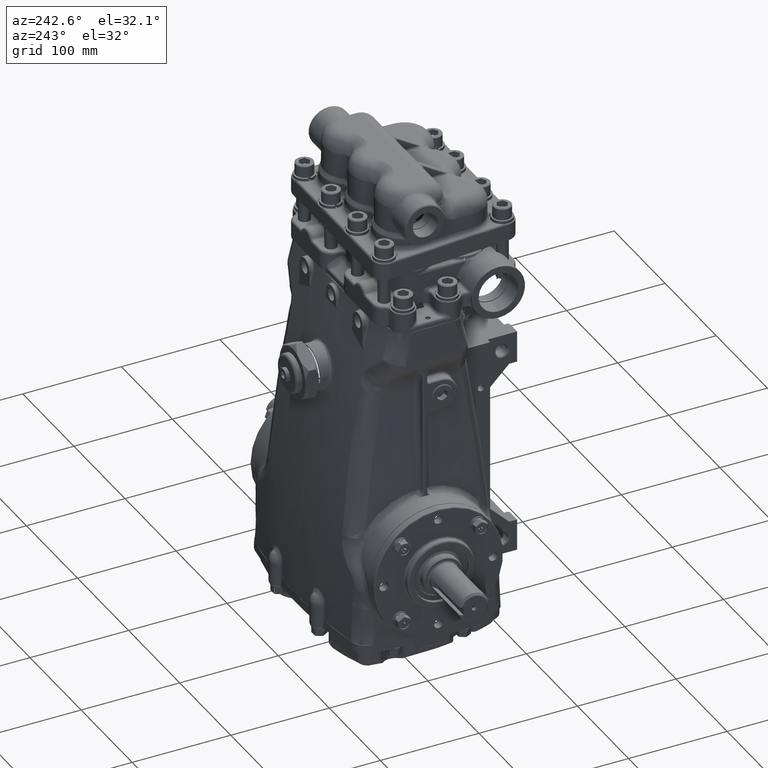
[diagram: clean part render]
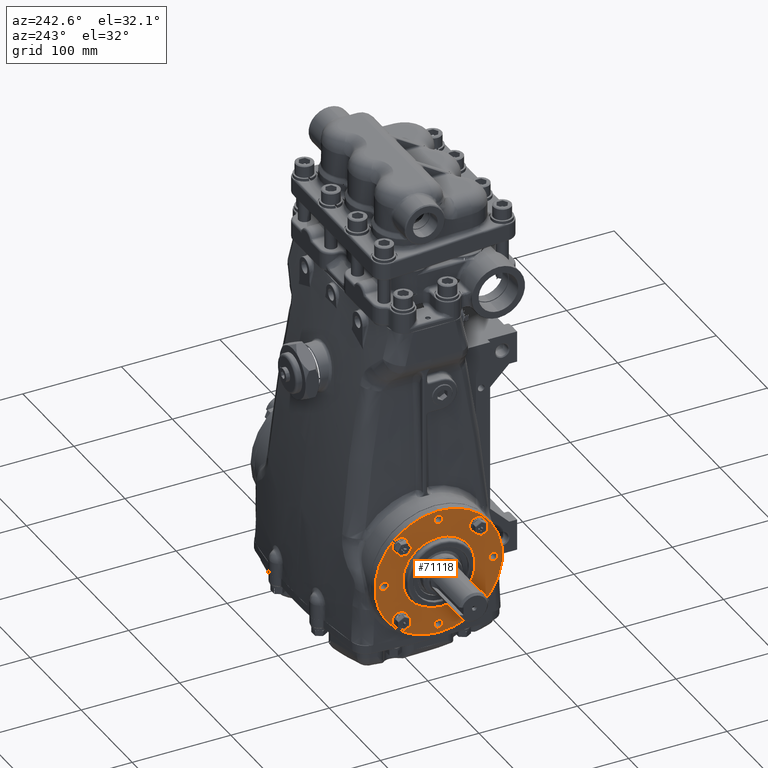
[diagram: same view with one face highlighted and labeled with its STEP entity id]
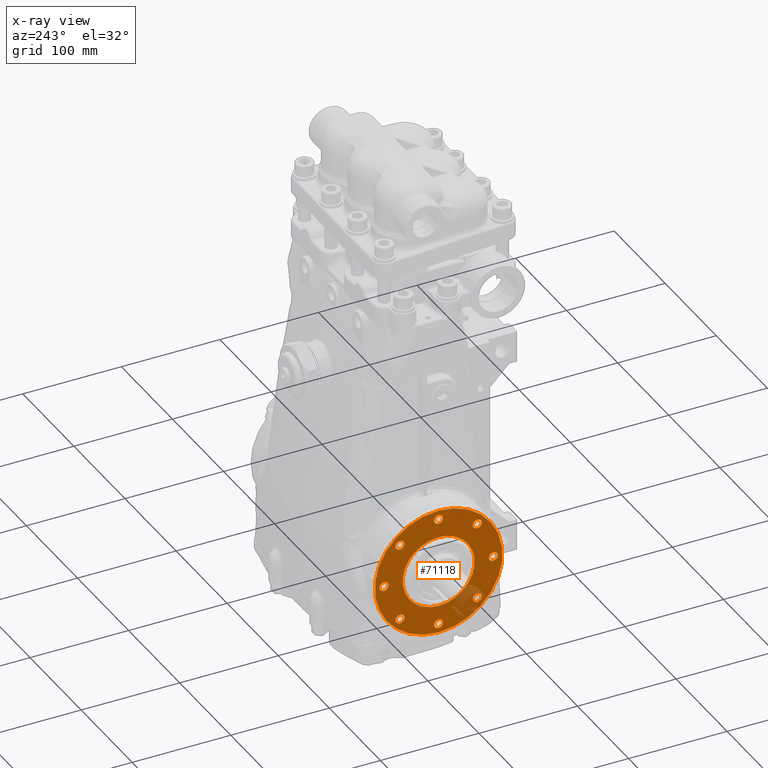
[diagram: x-ray of the same camera — body ghosted, the highlighted face saturated]
A machine part, auxiliary view. The second image highlights one B-rep face of the part: STEP entity #71118.
The next image is the same camera in x-ray: the body ghosted, the highlighted face saturated — about 9% of this face is hidden behind the body in this view.
In plain terms, the highlighted planar face has unit normal (-1, 0, -0).
Its self-contained STEP definition (entity closure, byte-faithful):
#747 = PLANE ( 'NONE',  #59064 ) ;
#983 = AXIS2_PLACEMENT_3D ( 'NONE', #21045, #37341, #78948 ) ;
#1345 = CARTESIAN_POINT ( 'NONE',  ( -4.763779527559056426, 5.217378254830398166E-16, -1.437007874015748810 ) ) ;
#1906 = CARTESIAN_POINT ( 'NONE',  ( -4.763779527559056426, 7.210691426501829022E-16, -2.549407286191299082 ) ) ;
#2695 = VERTEX_POINT ( 'NONE', #25826 ) ;
#2797 = ORIENTED_EDGE ( 'NONE', *, *, #4670, .F. ) ;
#2891 = DIRECTION ( 'NONE',  ( -1.000000000000000000, 1.131811308623775802E-16, -4.676151018663464800E-17 ) ) ;
#2995 = CARTESIAN_POINT ( 'NONE',  ( -4.763779527559056426, 7.639490398145056880E-17, 2.185039370078739829 ) ) ;
#3932 = DIRECTION ( 'NONE',  ( 0.000000000000000000, -5.551115123125782702E-17, 1.000000000000000000 ) ) ;
#4638 = ORIENTED_EDGE ( 'NONE', *, *, #20934, .F. ) ;
#4670 = EDGE_CURVE ( 'NONE', #2695, #77336, #20658, .T. ) ;
#4766 = VERTEX_POINT ( 'NONE', #14213 ) ;
#5802 = CARTESIAN_POINT ( 'NONE',  ( -4.763779527559056426, -2.185039370078739829, -6.072497878349156261E-16 ) ) ;
#6683 = DIRECTION ( 'NONE',  ( 0.000000000000000000, 0.000000000000000000, 1.000000000000000000 ) ) ;
#6750 = EDGE_CURVE ( 'NONE', #48793, #105255, #93479, .T. ) ;
#6973 = ORIENTED_EDGE ( 'NONE', *, *, #80955, .F. ) ;
#7025 = FACE_BOUND ( 'NONE', #51683, .T. ) ;
#7891 = AXIS2_PLACEMENT_3D ( 'NONE', #108284, #40771, #107728 ) ;
#7973 = EDGE_CURVE ( 'NONE', #77336, #2695, #21673, .T. ) ;
#7996 = ORIENTED_EDGE ( 'NONE', *, *, #75085, .F. ) ;
#8760 = CARTESIAN_POINT ( 'NONE',  ( -4.763779527559056426, -2.185039370078739829, -0.1771653543307092071 ) ) ;
#9388 = VERTEX_POINT ( 'NONE', #71325 ) ;
#10174 = EDGE_CURVE ( 'NONE', #83319, #9388, #31088, .T. ) ;
#10343 = DIRECTION ( 'NONE',  ( 0.000000000000000000, 0.000000000000000000, 1.000000000000000000 ) ) ;
#10538 = DIRECTION ( 'NONE',  ( -1.000000000000000000, 1.131811308623775802E-16, -4.676151018663464800E-17 ) ) ;
#10925 = AXIS2_PLACEMENT_3D ( 'NONE', #106325, #12407, #3932 ) ;
#11719 = ORIENTED_EDGE ( 'NONE', *, *, #7973, .F. ) ;
#11953 = DIRECTION ( 'NONE',  ( -1.000000000000000000, 1.131811308623775802E-16, -4.676151018663464800E-17 ) ) ;
#12407 = DIRECTION ( 'NONE',  ( -1.000000000000000000, 1.131811308623775802E-16, -4.676151018663464800E-17 ) ) ;
#12435 = AXIS2_PLACEMENT_3D ( 'NONE', #37296, #53075, #10343 ) ;
#12695 = CARTESIAN_POINT ( 'NONE',  ( -4.763779527559056426, -1.545056155742256410, 1.367890801411552726 ) ) ;
#14184 = DIRECTION ( 'NONE',  ( 0.000000000000000000, -5.551115123125782702E-17, 1.000000000000000000 ) ) ;
#14213 = CARTESIAN_POINT ( 'NONE',  ( -4.763779527559056426, -1.545056155742256410, -1.722221510072970974 ) ) ;
#16247 = DIRECTION ( 'NONE',  ( 0.000000000000000000, 0.000000000000000000, 1.000000000000000000 ) ) ;
#17220 = ORIENTED_EDGE ( 'NONE', *, *, #6750, .F. ) ;
#18957 = DIRECTION ( 'NONE',  ( 0.000000000000000000, 0.000000000000000000, 1.000000000000000000 ) ) ;
#19933 = AXIS2_PLACEMENT_3D ( 'NONE', #88950, #11953, #104168 ) ;
#20658 = CIRCLE ( 'NONE', #99693, 0.1771653543307085410 ) ;
#20934 = EDGE_CURVE ( 'NONE', #4766, #54082, #85654, .T. ) ;
#21045 = CARTESIAN_POINT ( 'NONE',  ( -4.763779527559056426, 2.185039370078740717, -3.646616859975289971E-16 ) ) ;
#21233 = CARTESIAN_POINT ( 'NONE',  ( -4.763779527559056426, 1.862151933267539862E-16, 1.437007874015747699 ) ) ;
#21673 = CIRCLE ( 'NONE', #10925, 0.1771653543307085410 ) ;
#22905 = AXIS2_PLACEMENT_3D ( 'NONE', #42084, #109603, #6683 ) ;
#25826 = CARTESIAN_POINT ( 'NONE',  ( -4.763779527559056426, 6.840575662283449653E-17, 2.007874015748031038 ) ) ;
#26303 = CARTESIAN_POINT ( 'NONE',  ( -4.763779527559056426, 1.545056155742256188, 1.545056155742262183 ) ) ;
#26684 = FACE_BOUND ( 'NONE', #80306, .T. ) ;
#28334 = CARTESIAN_POINT ( 'NONE',  ( -4.763779527559056426, 2.659851547417505008E-16, -4.932763697087029181E-16 ) ) ;
#29802 = CIRCLE ( 'NONE', #92615, 1.437007874015748365 ) ;
#29992 = DIRECTION ( 'NONE',  ( 0.000000000000000000, -5.551115123125783935E-17, 1.000000000000000000 ) ) ;
#31088 = CIRCLE ( 'NONE', #45484, 2.549407286191298638 ) ;
#32170 = VERTEX_POINT ( 'NONE', #97178 ) ;
#32706 = EDGE_LOOP ( 'NONE', ( #43510, #65337 ) ) ;
#33922 = ORIENTED_EDGE ( 'NONE', *, *, #64519, .T. ) ;
#33932 = AXIS2_PLACEMENT_3D ( 'NONE', #65710, #40957, #65157 ) ;
#33969 = FACE_BOUND ( 'NONE', #41016, .T. ) ;
#34586 = CIRCLE ( 'NONE', #63381, 0.1771653543307085410 ) ;
#35066 = CARTESIAN_POINT ( 'NONE',  ( -4.763779527559056426, 3.413841593668841774E-16, -1.358267716535433767 ) ) ;
#35468 = CIRCLE ( 'NONE', #22905, 0.1771653543307085965 ) ;
#37296 = CARTESIAN_POINT ( 'NONE',  ( -4.763779527559056426, -1.545056155742256410, -1.545056155742262405 ) ) ;
#37315 = DIRECTION ( 'NONE',  ( -1.000000000000000000, 1.131811308623775802E-16, -4.676151018663464800E-17 ) ) ;
#37341 = DIRECTION ( 'NONE',  ( -1.000000000000000000, 1.131811308623775802E-16, -4.676151018663464800E-17 ) ) ;
#38395 = DIRECTION ( 'NONE',  ( 1.000000000000000000, -1.131811308623775802E-16, 4.676151018663464800E-17 ) ) ;
#39225 = EDGE_CURVE ( 'NONE', #54374, #81275, #71925, .T. ) ;
#39640 = CIRCLE ( 'NONE', #64853, 2.549407286191298638 ) ;
#39745 = DIRECTION ( 'NONE',  ( 0.000000000000000000, -5.551115123125782702E-17, 1.000000000000000000 ) ) ;
#40128 = CIRCLE ( 'NONE', #103010, 0.1771653543307085410 ) ;
#40369 = DIRECTION ( 'NONE',  ( 0.000000000000000000, -5.551115123125783935E-17, 1.000000000000000000 ) ) ;
#40771 = DIRECTION ( 'NONE',  ( -1.000000000000000000, 1.131811308623775802E-16, -4.676151018663464800E-17 ) ) ;
#40957 = DIRECTION ( 'NONE',  ( -1.000000000000000000, 1.131811308623775802E-16, -4.676151018663464800E-17 ) ) ;
#41016 = EDGE_LOOP ( 'NONE', ( #65192, #17220 ) ) ;
#41161 = ORIENTED_EDGE ( 'NONE', *, *, #54988, .F. ) ;
#42084 = CARTESIAN_POINT ( 'NONE',  ( -4.763779527559056426, 2.185039370078740717, -3.646616859975289971E-16 ) ) ;
#42428 = FACE_BOUND ( 'NONE', #51854, .T. ) ;
#42822 = VERTEX_POINT ( 'NONE', #103253 ) ;
#43078 = VERTEX_POINT ( 'NONE', #58156 ) ;
#43510 = ORIENTED_EDGE ( 'NONE', *, *, #87535, .T. ) ;
#43543 = FACE_BOUND ( 'NONE', #63213, .T. ) ;
#43828 = CIRCLE ( 'NONE', #49233, 0.1771653543307085410 ) ;
#44367 = ORIENTED_EDGE ( 'NONE', *, *, #62545, .F. ) ;
#44817 = EDGE_CURVE ( 'NONE', #49315, #42822, #106749, .T. ) ;
#45484 = AXIS2_PLACEMENT_3D ( 'NONE', #28334, #55307, #29992 ) ;
#46758 = ORIENTED_EDGE ( 'NONE', *, *, #39225, .T. ) ;
#46912 = VERTEX_POINT ( 'NONE', #104894 ) ;
#47433 = AXIS2_PLACEMENT_3D ( 'NONE', #108051, #57413, #100156 ) ;
#47909 = EDGE_CURVE ( 'NONE', #46912, #72464, #78353, .T. ) ;
#48014 = DIRECTION ( 'NONE',  ( -1.000000000000000000, 1.131811308623775802E-16, -4.676151018663464800E-17 ) ) ;
#48407 = EDGE_LOOP ( 'NONE', ( #41161, #4638 ) ) ;
#48440 = CARTESIAN_POINT ( 'NONE',  ( -4.763779527559056426, 1.545056155742257742, -1.722221510072970085 ) ) ;
#48793 = VERTEX_POINT ( 'NONE', #51983 ) ;
#48992 = DIRECTION ( 'NONE',  ( 0.000000000000000000, 0.000000000000000000, 1.000000000000000000 ) ) ;
#49233 = AXIS2_PLACEMENT_3D ( 'NONE', #87183, #90933, #96191 ) ;
#49315 = VERTEX_POINT ( 'NONE', #97079 ) ;
#50885 = FACE_BOUND ( 'NONE', #103400, .T. ) ;
#51683 = EDGE_LOOP ( 'NONE', ( #59661, #6973 ) ) ;
#51854 = EDGE_LOOP ( 'NONE', ( #2797, #11719 ) ) ;
#51983 = CARTESIAN_POINT ( 'NONE',  ( -4.763779527559056426, -2.185039370078739829, 0.1771653543307079581 ) ) ;
#53075 = DIRECTION ( 'NONE',  ( -1.000000000000000000, 1.131811308623775802E-16, -4.676151018663464800E-17 ) ) ;
#54082 = VERTEX_POINT ( 'NONE', #92239 ) ;
#54101 = ORIENTED_EDGE ( 'NONE', *, *, #95076, .F. ) ;
#54374 = VERTEX_POINT ( 'NONE', #1345 ) ;
#54988 = EDGE_CURVE ( 'NONE', #54082, #4766, #107908, .T. ) ;
#55307 = DIRECTION ( 'NONE',  ( -1.000000000000000000, 1.131811308623775802E-16, -4.676151018663464800E-17 ) ) ;
#57413 = DIRECTION ( 'NONE',  ( -1.000000000000000000, 1.131811308623775802E-16, -4.676151018663464800E-17 ) ) ;
#58156 = CARTESIAN_POINT ( 'NONE',  ( -4.763779527559056426, 2.185039370078740717, -0.1771653543307089573 ) ) ;
#58991 = CARTESIAN_POINT ( 'NONE',  ( -4.763779527559056426, -1.545056155742256410, 1.545056155742261295 ) ) ;
#59064 = AXIS2_PLACEMENT_3D ( 'NONE', #35066, #59864, #94136 ) ;
#59150 = CIRCLE ( 'NONE', #66294, 0.1771653543307085410 ) ;
#59661 = ORIENTED_EDGE ( 'NONE', *, *, #77924, .F. ) ;
#59864 = DIRECTION ( 'NONE',  ( -1.000000000000000000, 1.131811308623775802E-16, -4.676151018663464184E-17 ) ) ;
#62545 = EDGE_CURVE ( 'NONE', #72464, #46912, #43828, .T. ) ;
#63213 = EDGE_LOOP ( 'NONE', ( #108532, #44367 ) ) ;
#63381 = AXIS2_PLACEMENT_3D ( 'NONE', #99587, #90582, #48992 ) ;
#63430 = CARTESIAN_POINT ( 'NONE',  ( -4.763779527559056426, 2.659851547417505008E-16, -4.932763697087029181E-16 ) ) ;
#63464 = ORIENTED_EDGE ( 'NONE', *, *, #88494, .F. ) ;
#63493 = EDGE_LOOP ( 'NONE', ( #83226, #54101 ) ) ;
#63658 = CARTESIAN_POINT ( 'NONE',  ( -4.763779527559056426, -2.185039370078739829, -6.072497878349156261E-16 ) ) ;
#64519 = EDGE_CURVE ( 'NONE', #81275, #54374, #29802, .T. ) ;
#64853 = AXIS2_PLACEMENT_3D ( 'NONE', #74095, #65136, #40369 ) ;
#65136 = DIRECTION ( 'NONE',  ( -1.000000000000000000, 1.131811308623775802E-16, -4.676151018663464800E-17 ) ) ;
#65157 = DIRECTION ( 'NONE',  ( 0.000000000000000000, -5.551115123125791330E-17, 1.000000000000000000 ) ) ;
#65192 = ORIENTED_EDGE ( 'NONE', *, *, #82392, .F. ) ;
#65337 = ORIENTED_EDGE ( 'NONE', *, *, #10174, .T. ) ;
#65385 = DIRECTION ( 'NONE',  ( -1.000000000000000000, 1.131811308623775802E-16, -4.676151018663464800E-17 ) ) ;
#65659 = CIRCLE ( 'NONE', #983, 0.1771653543307085965 ) ;
#65710 = CARTESIAN_POINT ( 'NONE',  ( -4.763779527559055538, 3.189830058188371362E-16, -2.185039370078740717 ) ) ;
#66294 = AXIS2_PLACEMENT_3D ( 'NONE', #26303, #10538, #18957 ) ;
#68284 = FACE_BOUND ( 'NONE', #48407, .T. ) ;
#69173 = CARTESIAN_POINT ( 'NONE',  ( -4.763779527559055538, 3.130210513159292121E-16, -2.007874015748032370 ) ) ;
#69393 = FACE_OUTER_BOUND ( 'NONE', #32706, .T. ) ;
#69991 = VERTEX_POINT ( 'NONE', #69173 ) ;
#70524 = CIRCLE ( 'NONE', #47433, 0.1771653543307085410 ) ;
#71118 = ADVANCED_FACE ( 'NONE', ( #69393, #50885, #42428, #33969, #7025, #93039, #68284, #43543, #26684, #101504 ), #747, .T. ) ;
#71229 = AXIS2_PLACEMENT_3D ( 'NONE', #58991, #92158, #16247 ) ;
#71325 = CARTESIAN_POINT ( 'NONE',  ( -4.763779527559056426, 1.244646213279146687E-16, 2.549407286191298194 ) ) ;
#71925 = CIRCLE ( 'NONE', #100575, 1.437007874015748365 ) ;
#72464 = VERTEX_POINT ( 'NONE', #12695 ) ;
#73241 = CARTESIAN_POINT ( 'NONE',  ( -4.763779527559056426, 2.659851547417505008E-16, -4.932763697087029181E-16 ) ) ;
#73435 = AXIS2_PLACEMENT_3D ( 'NONE', #5802, #48014, #82261 ) ;
#73794 = CARTESIAN_POINT ( 'NONE',  ( -4.763779527559056426, 1.545056155742257742, -1.545056155742261517 ) ) ;
#74095 = CARTESIAN_POINT ( 'NONE',  ( -4.763779527559056426, 2.659851547417505008E-16, -4.932763697087029181E-16 ) ) ;
#74425 = CARTESIAN_POINT ( 'NONE',  ( -4.763779527559055538, 3.109938584602210639E-16, -2.362204724409449508 ) ) ;
#75085 = EDGE_CURVE ( 'NONE', #110091, #32170, #40128, .T. ) ;
#77336 = VERTEX_POINT ( 'NONE', #93001 ) ;
#77924 = EDGE_CURVE ( 'NONE', #43078, #94146, #65659, .T. ) ;
#78353 = CIRCLE ( 'NONE', #71229, 0.1771653543307085410 ) ;
#78948 = DIRECTION ( 'NONE',  ( 0.000000000000000000, 0.000000000000000000, 1.000000000000000000 ) ) ;
#80306 = EDGE_LOOP ( 'NONE', ( #63464, #106107 ) ) ;
#80955 = EDGE_CURVE ( 'NONE', #94146, #43078, #35468, .T. ) ;
#81141 = DIRECTION ( 'NONE',  ( 0.000000000000000000, 0.000000000000000000, 1.000000000000000000 ) ) ;
#81143 = DIRECTION ( 'NONE',  ( 0.000000000000000000, -5.551115123125782702E-17, 1.000000000000000000 ) ) ;
#81275 = VERTEX_POINT ( 'NONE', #21233 ) ;
#82261 = DIRECTION ( 'NONE',  ( 0.000000000000000000, 0.000000000000000000, 1.000000000000000000 ) ) ;
#82392 = EDGE_CURVE ( 'NONE', #105255, #48793, #87804, .T. ) ;
#82411 = CIRCLE ( 'NONE', #33932, 0.1771653543307085410 ) ;
#83012 = DIRECTION ( 'NONE',  ( 1.000000000000000000, -1.131811308623775802E-16, 4.676151018663464800E-17 ) ) ;
#83193 = EDGE_CURVE ( 'NONE', #106641, #69991, #82411, .T. ) ;
#83226 = ORIENTED_EDGE ( 'NONE', *, *, #83193, .F. ) ;
#83319 = VERTEX_POINT ( 'NONE', #1906 ) ;
#85654 = CIRCLE ( 'NONE', #12435, 0.1771653543307085410 ) ;
#87183 = CARTESIAN_POINT ( 'NONE',  ( -4.763779527559056426, -1.545056155742256410, 1.545056155742261295 ) ) ;
#87535 = EDGE_CURVE ( 'NONE', #9388, #83319, #39640, .T. ) ;
#87804 = CIRCLE ( 'NONE', #73435, 0.1771653543307085965 ) ;
#88112 = AXIS2_PLACEMENT_3D ( 'NONE', #63658, #2891, #97948 ) ;
#88494 = EDGE_CURVE ( 'NONE', #42822, #49315, #59150, .T. ) ;
#88950 = CARTESIAN_POINT ( 'NONE',  ( -4.763779527559056426, -1.545056155742256410, -1.545056155742262405 ) ) ;
#90582 = DIRECTION ( 'NONE',  ( -1.000000000000000000, 1.131811308623775802E-16, -4.676151018663464800E-17 ) ) ;
#90933 = DIRECTION ( 'NONE',  ( -1.000000000000000000, 1.131811308623775802E-16, -4.676151018663464800E-17 ) ) ;
#92158 = DIRECTION ( 'NONE',  ( -1.000000000000000000, 1.131811308623775802E-16, -4.676151018663464800E-17 ) ) ;
#92239 = CARTESIAN_POINT ( 'NONE',  ( -4.763779527559056426, -1.545056155742256410, -1.367890801411553836 ) ) ;
#92615 = AXIS2_PLACEMENT_3D ( 'NONE', #73241, #38395, #14184 ) ;
#93001 = CARTESIAN_POINT ( 'NONE',  ( -4.763779527559056426, 7.043294947854269404E-17, 2.362204724409448175 ) ) ;
#93039 = FACE_BOUND ( 'NONE', #63493, .T. ) ;
#93479 = CIRCLE ( 'NONE', #88112, 0.1771653543307085965 ) ;
#94136 = DIRECTION ( 'NONE',  ( -4.676151018663464800E-17, -5.551115123125783935E-17, 1.000000000000000000 ) ) ;
#94146 = VERTEX_POINT ( 'NONE', #95691 ) ;
#95076 = EDGE_CURVE ( 'NONE', #69991, #106641, #70524, .T. ) ;
#95691 = CARTESIAN_POINT ( 'NONE',  ( -4.763779527559056426, 2.185039370078740717, 0.1771653543307082079 ) ) ;
#96191 = DIRECTION ( 'NONE',  ( 0.000000000000000000, 0.000000000000000000, 1.000000000000000000 ) ) ;
#97079 = CARTESIAN_POINT ( 'NONE',  ( -4.763779527559056426, 1.545056155742256188, 1.367890801411553614 ) ) ;
#97178 = CARTESIAN_POINT ( 'NONE',  ( -4.763779527559056426, 1.545056155742257742, -1.367890801411552948 ) ) ;
#97948 = DIRECTION ( 'NONE',  ( 0.000000000000000000, 0.000000000000000000, 1.000000000000000000 ) ) ;
#99587 = CARTESIAN_POINT ( 'NONE',  ( -4.763779527559056426, 1.545056155742257742, -1.545056155742261517 ) ) ;
#99693 = AXIS2_PLACEMENT_3D ( 'NONE', #2995, #37315, #81143 ) ;
#100156 = DIRECTION ( 'NONE',  ( 0.000000000000000000, -5.551115123125791330E-17, 1.000000000000000000 ) ) ;
#100575 = AXIS2_PLACEMENT_3D ( 'NONE', #63430, #83012, #39745 ) ;
#101504 = FACE_BOUND ( 'NONE', #106942, .T. ) ;
#103010 = AXIS2_PLACEMENT_3D ( 'NONE', #73794, #65385, #81141 ) ;
#103253 = CARTESIAN_POINT ( 'NONE',  ( -4.763779527559056426, 1.545056155742256188, 1.722221510072970752 ) ) ;
#103400 = EDGE_LOOP ( 'NONE', ( #33922, #46758 ) ) ;
#104168 = DIRECTION ( 'NONE',  ( 0.000000000000000000, 0.000000000000000000, 1.000000000000000000 ) ) ;
#104894 = CARTESIAN_POINT ( 'NONE',  ( -4.763779527559056426, -1.545056155742256410, 1.722221510072969863 ) ) ;
#105255 = VERTEX_POINT ( 'NONE', #8760 ) ;
#106107 = ORIENTED_EDGE ( 'NONE', *, *, #44817, .F. ) ;
#106325 = CARTESIAN_POINT ( 'NONE',  ( -4.763779527559056426, 7.639490398145056880E-17, 2.185039370078739829 ) ) ;
#106641 = VERTEX_POINT ( 'NONE', #74425 ) ;
#106749 = CIRCLE ( 'NONE', #7891, 0.1771653543307085410 ) ;
#106942 = EDGE_LOOP ( 'NONE', ( #111150, #7996 ) ) ;
#107728 = DIRECTION ( 'NONE',  ( 0.000000000000000000, 0.000000000000000000, 1.000000000000000000 ) ) ;
#107908 = CIRCLE ( 'NONE', #19933, 0.1771653543307085410 ) ;
#108051 = CARTESIAN_POINT ( 'NONE',  ( -4.763779527559055538, 3.189830058188371362E-16, -2.185039370078740717 ) ) ;
#108284 = CARTESIAN_POINT ( 'NONE',  ( -4.763779527559056426, 1.545056155742256188, 1.545056155742262183 ) ) ;
#108532 = ORIENTED_EDGE ( 'NONE', *, *, #47909, .F. ) ;
#109603 = DIRECTION ( 'NONE',  ( -1.000000000000000000, 1.131811308623775802E-16, -4.676151018663464800E-17 ) ) ;
#110076 = EDGE_CURVE ( 'NONE', #32170, #110091, #34586, .T. ) ;
#110091 = VERTEX_POINT ( 'NONE', #48440 ) ;
#111150 = ORIENTED_EDGE ( 'NONE', *, *, #110076, .F. ) ;